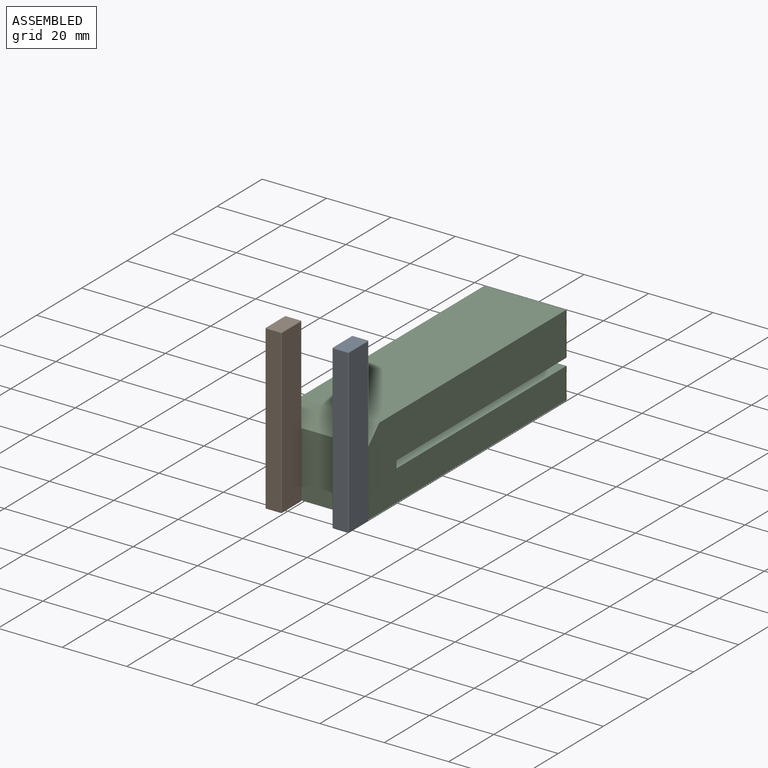
[diagram: assembled view]
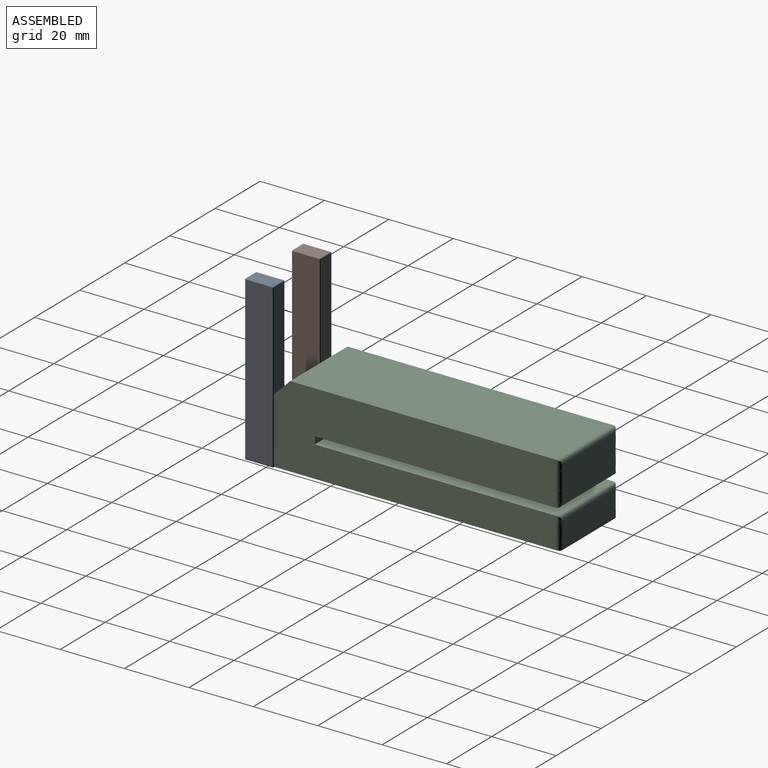
[diagram: assembled view, second angle]
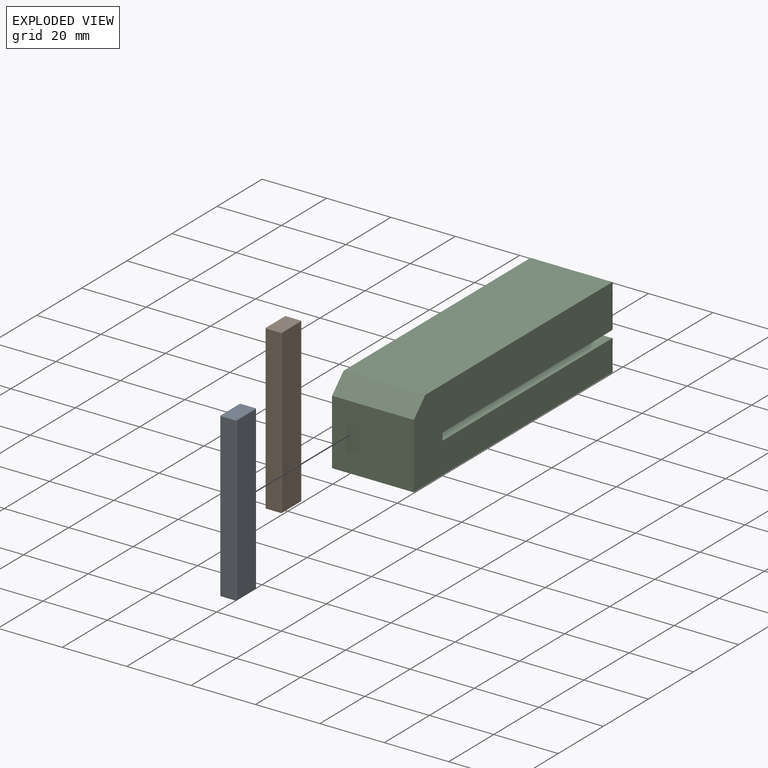
[diagram: exploded view]
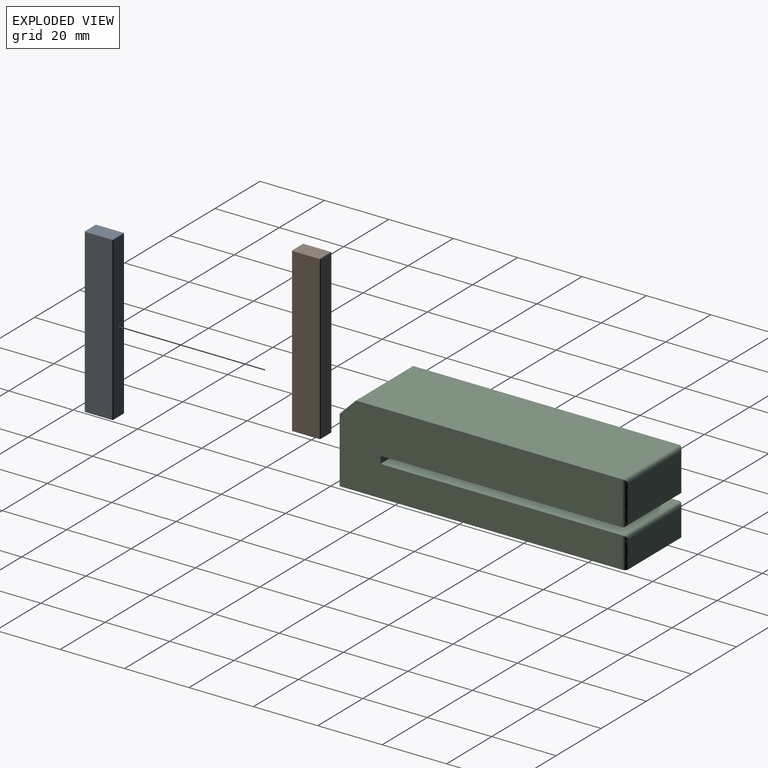
[diagram: exploded view, second angle]
ASSEMBLY  parts=3 mates=2
PART A: 26 faces, bbox 5.1x8.9x50.8 mm
  f0: plane 50.29x4.57mm, normal (0,1,0), area 229.9mm2, adj f14,f19,f22,f25
  f1: plane 50.29x8.38mm, normal (-1,0,0), area 421.5mm2, adj f11,f20,f21,f25
  f2: plane 50.29x4.57mm, normal (0,-1,0), area 229.9mm2, adj f6,f10,f11,f12
  f3: plane 50.29x8.38mm, normal (1,0,0), area 421.5mm2, adj f6,f9,f13,f14
  f4: plane 8.38x4.57mm, normal (0,0,1), area 38.3mm2, adj f9,f10,f19,f20
  f5: plane 8.38x4.57mm, normal (0,0,-1), area 38.3mm2, adj f12,f13,f21,f22
  f6: cylinder r=0.25mm len=50.29mm, axis (0,0,1), area 20.1mm2, adj f2,f3,f7,f8
  f7: sphere r=0.25mm, area 0.1mm2, adj f6,f9,f10
  f8: sphere r=0.25mm, area 0.1mm2, adj f6,f12,f13
  f9: cylinder r=0.25mm len=8.38mm, axis (0,-1,0), area 3.3mm2, adj f3,f4,f7,f15
  f10: cylinder r=0.25mm len=4.57mm, axis (-1,0,0), area 1.8mm2, adj f2,f4,f7,f16
  f11: cylinder r=0.25mm len=50.29mm, axis (0,0,-1), area 20.1mm2, adj f1,f2,f16,f17
  f12: cylinder r=0.25mm len=4.57mm, axis (1,0,0), area 1.8mm2, adj f2,f5,f8,f17
  f13: cylinder r=0.25mm len=8.38mm, axis (0,1,0), area 3.3mm2, adj f3,f5,f8,f18
  f14: cylinder r=0.25mm len=50.29mm, axis (0,0,-1), area 20.1mm2, adj f0,f3,f15,f18
  f15: sphere r=0.25mm, area 0.1mm2, adj f9,f14,f19
  f16: sphere r=0.25mm, area 0.1mm2, adj f10,f11,f20
  f17: sphere r=0.25mm, area 0.1mm2, adj f11,f12,f21
  f18: sphere r=0.25mm, area 0.1mm2, adj f13,f14,f22
  f19: cylinder r=0.25mm len=4.57mm, axis (1,0,0), area 1.8mm2, adj f0,f4,f15,f23
  f20: cylinder r=0.25mm len=8.38mm, axis (0,1,0), area 3.3mm2, adj f1,f4,f16,f23
  f21: cylinder r=0.25mm len=8.38mm, axis (0,-1,0), area 3.3mm2, adj f1,f5,f17,f24
  f22: cylinder r=0.25mm len=4.57mm, axis (-1,0,0), area 1.8mm2, adj f0,f5,f18,f24
  f23: sphere r=0.25mm, area 0.1mm2, adj f19,f20,f25
  f24: sphere r=0.25mm, area 0.1mm2, adj f21,f22,f25
  f25: cylinder r=0.25mm len=50.29mm, axis (0,0,1), area 20.1mm2, adj f0,f1,f23,f24
PART B: same geometry as A
PART C: 30 faces, bbox 28.1x89x26.7 mm
  f0: plane 74.93x25.4mm, normal (0,0,1), area 1903.2mm2, adj f2,f4,f6,f16
  f1: plane 22.86x8.38mm, normal (0,1,0), area 191.6mm2, adj f5,f15,f16,f17
  f2: plane 87.63x25.4mm, normal (-1,0,0), area 2041.6mm2, adj f0,f3,f5,f6,f8,f9,f10,f12
  f3: plane 25.4x20.32mm, normal (0,-1,0), area 516.1mm2, adj f2,f4,f5,f10
  f4: plane 87.63x25.4mm, normal (1,0,0), area 2041.6mm2, adj f0,f3,f5,f6,f8,f9,f10,f13
  f5: plane 89.03x25.53mm, normal (0,0,-1), area 2175.8mm2, adj f1,f2,f3,f4,f15,f17,f18,f20
  f6: plane 25.4x2.29mm, normal (0,1,0), area 58.1mm2, adj f0,f2,f4,f9
  f7: plane 22.86x10.92mm, normal (0,1,0), area 249.7mm2, adj f11,f12,f13,f14
  f8: plane 82.55x25.4mm, normal (0,0,1), area 2096.8mm2, adj f2,f4,f10,f14
  f9: plane 74.93x25.4mm, normal (0,0,-1), area 1903.2mm2, adj f2,f4,f6,f11
  f10: plane 25.4x5.08mm, normal (0,-0.71,0.71), area 182.5mm2, adj f2,f3,f4,f8
  f11: bspline ~27.94x1.27mm, area 49.8mm2, adj f7,f9,f12,f13
  f12: bspline ~14.81x1.27mm, area 25.2mm2, adj f2,f7,f11,f14
  f13: bspline ~14.81x1.27mm, area 25.2mm2, adj f4,f7,f11,f14
  f14: bspline ~27.94x1.27mm, area 49.8mm2, adj f7,f8,f12,f13
  f15: bspline ~10.62x1.27mm, area 18.6mm2, adj f1,f4,f5,f16
  f16: bspline ~27.94x1.27mm, area 49.8mm2, adj f0,f1,f15,f17
  f17: bspline ~10.62x1.27mm, area 18.6mm2, adj f1,f2,f5,f16
  f18: cylinder r=2.08mm len=4.17mm, axis (0,0,-1), area 33.2mm2, adj f5,f19
  f19: plane 4.17x4.17mm, normal (0,0,-1), area 13.6mm2, adj f18
  f20: cylinder r=2.08mm len=4.17mm, axis (0,0,-1), area 33.2mm2, adj f5,f21
  f21: plane 4.17x4.17mm, normal (0,0,-1), area 13.6mm2, adj f20
  f22: cylinder r=2.08mm len=4.17mm, axis (0,0,-1), area 33.2mm2, adj f5,f23
  f23: plane 4.17x4.17mm, normal (0,0,-1), area 13.6mm2, adj f22
  f24: cylinder r=2.08mm len=4.17mm, axis (0,0,-1), area 33.2mm2, adj f5,f25
  f25: plane 4.17x4.17mm, normal (0,0,-1), area 13.6mm2, adj f24
  f26: cylinder r=2.08mm len=4.17mm, axis (0,0,-1), area 33.2mm2, adj f5,f27
  f27: plane 4.17x4.17mm, normal (0,0,-1), area 13.6mm2, adj f26
  f28: cylinder r=2.08mm len=4.17mm, axis (0,0,-1), area 33.2mm2, adj f5,f29
  f29: plane 4.17x4.17mm, normal (0,0,-1), area 13.6mm2, adj f28
PLACE A t=(2.42,-43.16,8.69)mm
PLACE B t=(-18.41,-43.16,8.69)mm
PLACE C t=(-7.15,-17.94,8.94)mm
MATE fastened B.f21 <-> C.f3  axis (0,1,0) through (-23.23,-36.13,8.94)mm
MATE fastened A.f13 <-> C.f3  axis (0,1,0) through (2.17,-36.13,8.94)mm
